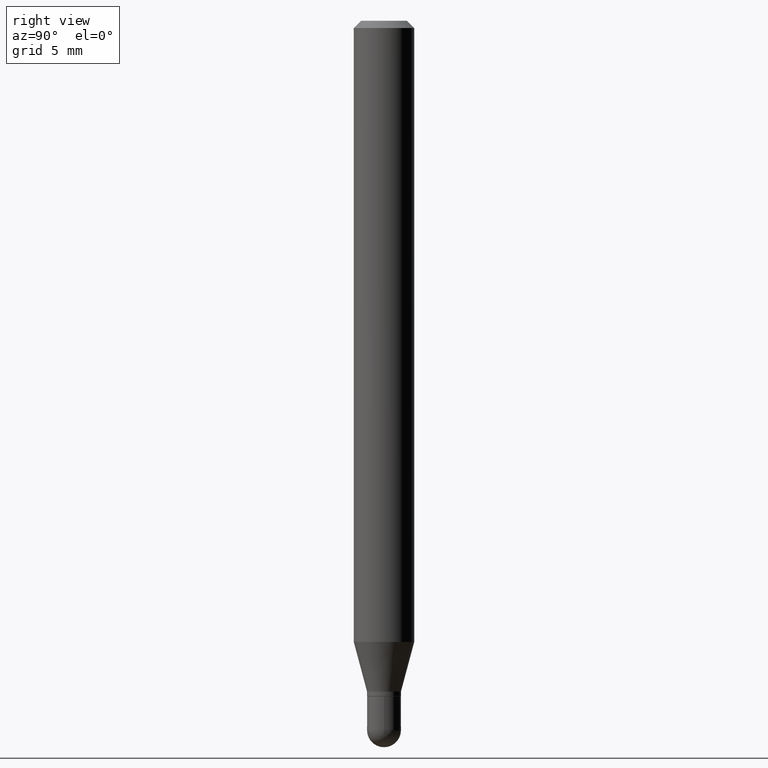
[diagram: clean part render]
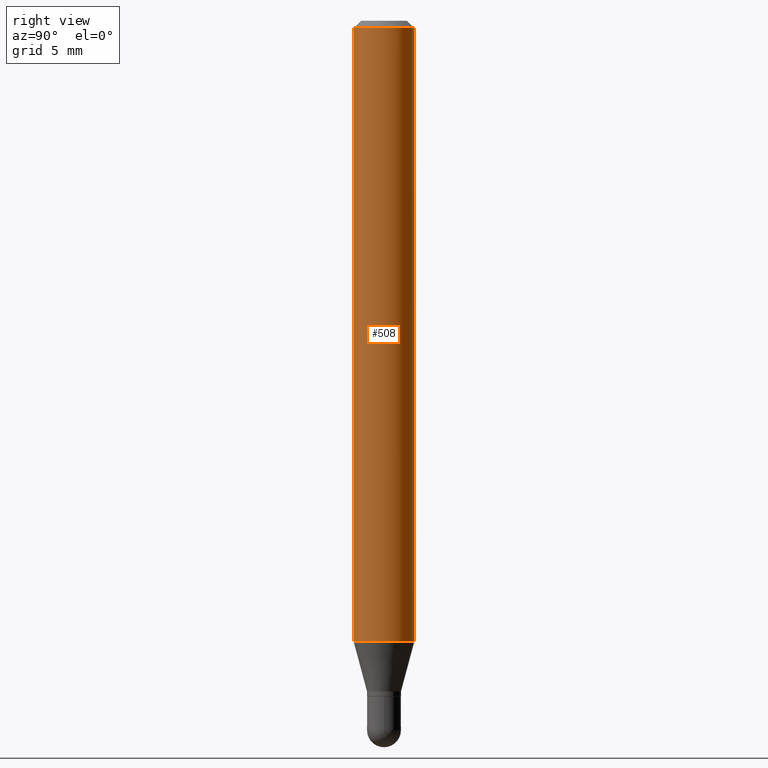
[diagram: same view with one face highlighted and labeled with its STEP entity id]
A machine part, right view. The second image highlights one B-rep face of the part: STEP entity #508.
In plain terms, the highlighted cylindrical surface (edge-blend (fillet) strip) has radius 1.5875 mm, axis along (-0, 0, 1).
Its self-contained STEP definition (entity closure, byte-faithful):
#14 = CARTESIAN_POINT ( 'NONE',  ( -4.364351673553604601E-16, -0.06250000000000451028, -1.282368602791855716 ) ) ;
#16 = CARTESIAN_POINT ( 'NONE',  ( 3.668135140074486456E-31, -5.237319487237992439E-17, -0.01500000000000000812 ) ) ;
#23 = LINE ( 'NONE', #490, #257 ) ;
#25 = DIRECTION ( 'NONE',  ( -2.445423426716322459E-29, 3.491546324825326452E-15, 1.000000000000000000 ) ) ;
#48 = CIRCLE ( 'NONE', #278, 0.06250000000000000000 ) ;
#80 = ORIENTED_EDGE ( 'NONE', *, *, #136, .T. ) ;
#86 = CYLINDRICAL_SURFACE ( 'NONE', #341, 0.06250000000000000000 ) ;
#97 = DIRECTION ( 'NONE',  ( -6.982962677686265922E-15, -1.000000000000000000, 3.483106191921935554E-15 ) ) ;
#131 = CARTESIAN_POINT ( 'NONE',  ( 4.440892098500936776E-16, 0.06249999999999548972, -1.282368602791856160 ) ) ;
#135 = CARTESIAN_POINT ( 'NONE',  ( -4.364351673553916201E-16, -0.06250000000000000000, 2.182216453015828786E-16 ) ) ;
#136 = EDGE_CURVE ( 'NONE', #485, #262, #23, .T. ) ;
#140 = DIRECTION ( 'NONE',  ( -6.982962677686265922E-15, -1.000000000000000000, 4.370956789862821150E-15 ) ) ;
#170 = CIRCLE ( 'NONE', #368, 0.06250000000000000000 ) ;
#174 = EDGE_CURVE ( 'NONE', #187, #485, #48, .T. ) ;
#175 = LINE ( 'NONE', #135, #369 ) ;
#178 = DIRECTION ( 'NONE',  ( -2.445423426716322459E-29, 3.491546324825326452E-15, 1.000000000000000000 ) ) ;
#182 = DIRECTION ( 'NONE',  ( -2.445423426716322459E-29, 3.491546324825326452E-15, 1.000000000000000000 ) ) ;
#187 = VERTEX_POINT ( 'NONE', #14 ) ;
#201 = ORIENTED_EDGE ( 'NONE', *, *, #211, .F. ) ;
#211 = EDGE_CURVE ( 'NONE', #299, #262, #170, .T. ) ;
#220 = CARTESIAN_POINT ( 'NONE',  ( -4.364351673553912750E-16, -0.06250000000000005551, -0.01499999999999979128 ) ) ;
#240 = CARTESIAN_POINT ( 'NONE',  ( 0.000000000000000000, 0.000000000000000000, 0.000000000000000000 ) ) ;
#257 = VECTOR ( 'NONE', #178, 39.37007874015748143 ) ;
#259 = CARTESIAN_POINT ( 'NONE',  ( 4.440892098500940720E-16, 0.06249999999999993755, -0.01500000000000022669 ) ) ;
#262 = VERTEX_POINT ( 'NONE', #259 ) ;
#278 = AXIS2_PLACEMENT_3D ( 'NONE', #405, #182, #140 ) ;
#283 = DIRECTION ( 'NONE',  ( -6.982962677686265922E-15, -1.000000000000000000, 3.491546324825326058E-15 ) ) ;
#299 = VERTEX_POINT ( 'NONE', #220 ) ;
#324 = FACE_OUTER_BOUND ( 'NONE', #502, .T. ) ;
#339 = ORIENTED_EDGE ( 'NONE', *, *, #174, .T. ) ;
#341 = AXIS2_PLACEMENT_3D ( 'NONE', #240, #360, #283 ) ;
#360 = DIRECTION ( 'NONE',  ( -2.445423426716322459E-29, 3.491546324825326452E-15, 1.000000000000000000 ) ) ;
#368 = AXIS2_PLACEMENT_3D ( 'NONE', #16, #25, #97 ) ;
#369 = VECTOR ( 'NONE', #439, 39.37007874015748143 ) ;
#382 = ORIENTED_EDGE ( 'NONE', *, *, #491, .F. ) ;
#405 = CARTESIAN_POINT ( 'NONE',  ( 3.135934222952683289E-29, -4.477449382149292879E-15, -1.282368602791855938 ) ) ;
#439 = DIRECTION ( 'NONE',  ( -2.445423426716322459E-29, 3.491546324825326452E-15, 1.000000000000000000 ) ) ;
#485 = VERTEX_POINT ( 'NONE', #131 ) ;
#490 = CARTESIAN_POINT ( 'NONE',  ( 4.440892098500625669E-16, 0.06250000000000000000, -2.182216453015828786E-16 ) ) ;
#491 = EDGE_CURVE ( 'NONE', #187, #299, #175, .T. ) ;
#502 = EDGE_LOOP ( 'NONE', ( #339, #80, #201, #382 ) ) ;
#508 = ADVANCED_FACE ( 'NONE', ( #324 ), #86, .T. ) ;